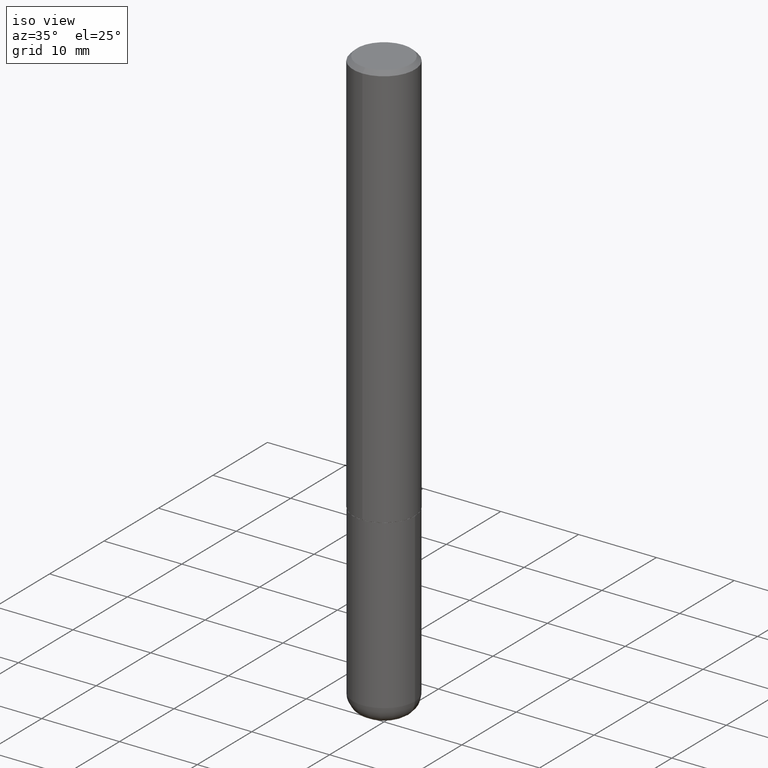
[diagram: clean part render]
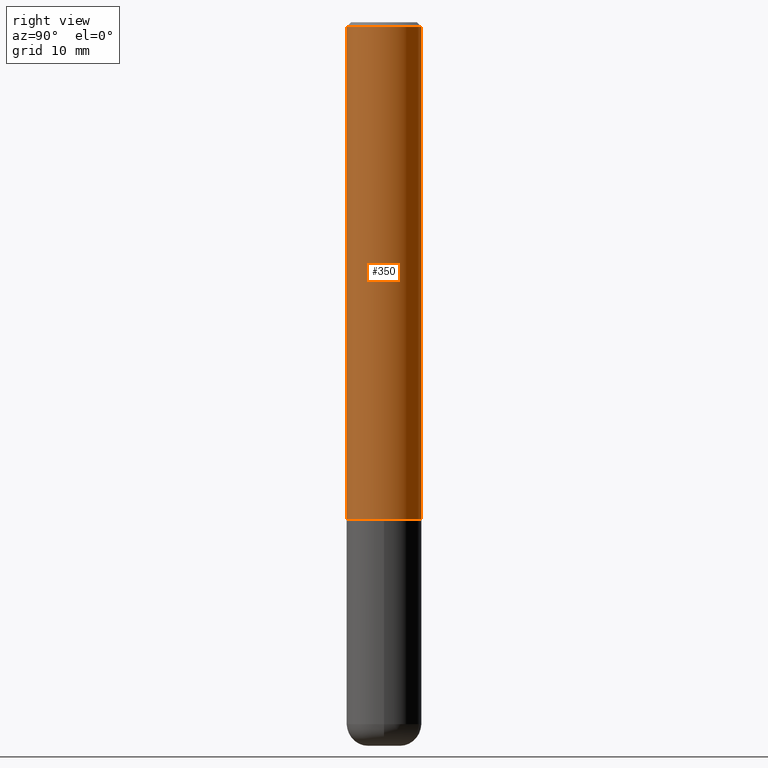
[diagram: tour spotlight — one face highlighted and labeled with its STEP entity id]
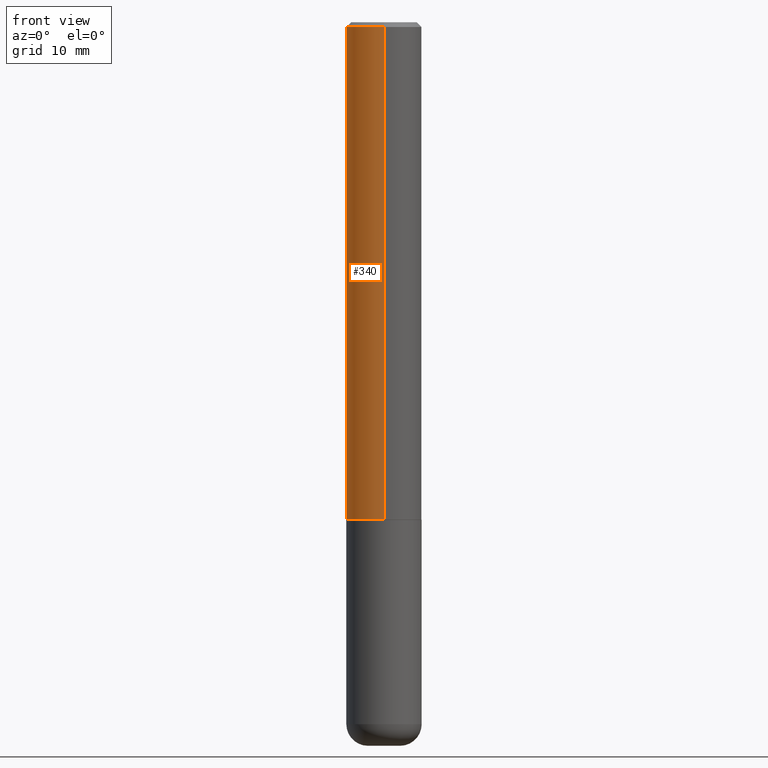
[diagram: tour spotlight — one face highlighted and labeled with its STEP entity id]
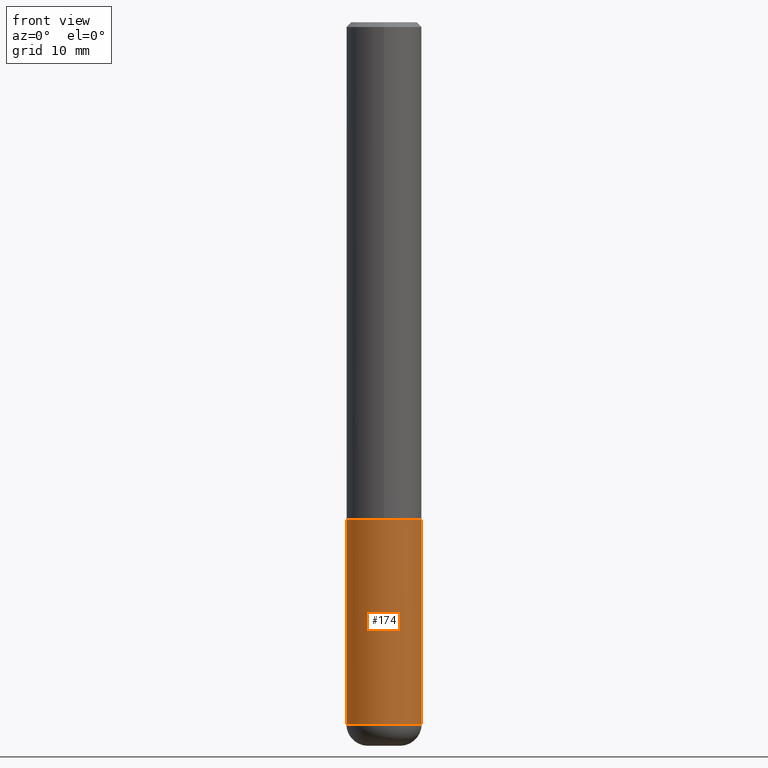
[diagram: tour spotlight — one face highlighted and labeled with its STEP entity id]
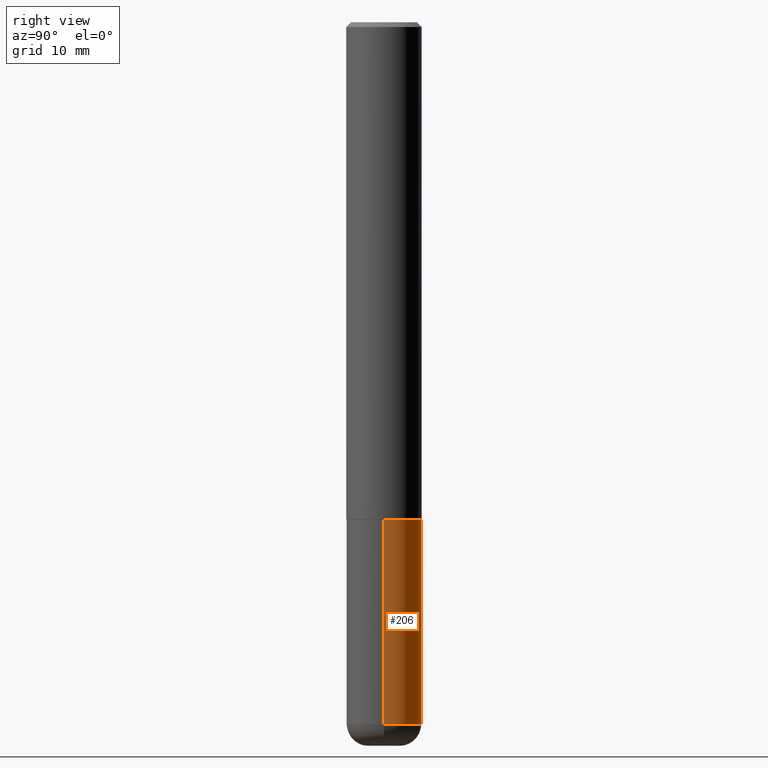
[diagram: tour spotlight — one face highlighted and labeled with its STEP entity id]
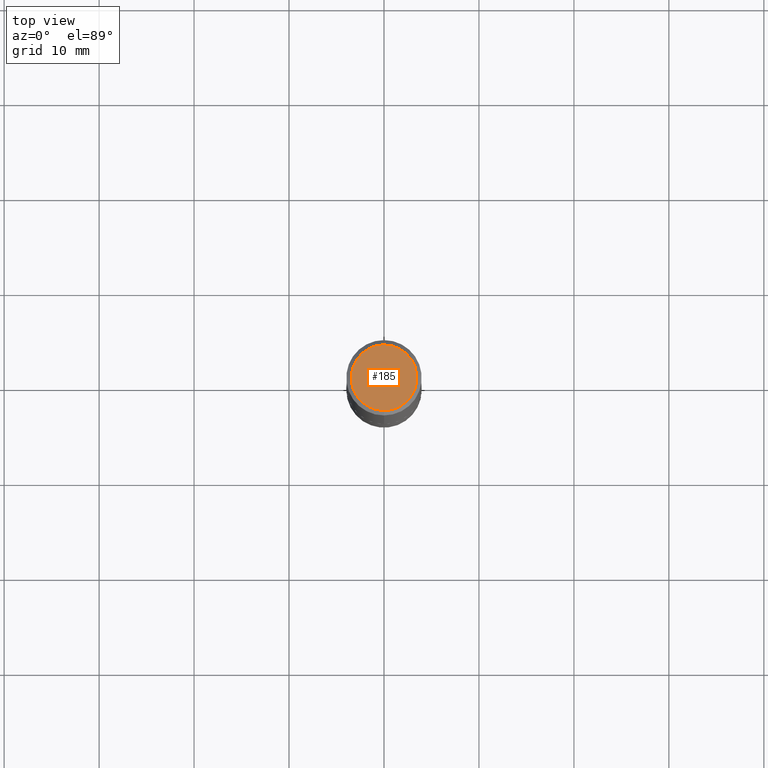
[diagram: tour spotlight — one face highlighted and labeled with its STEP entity id]
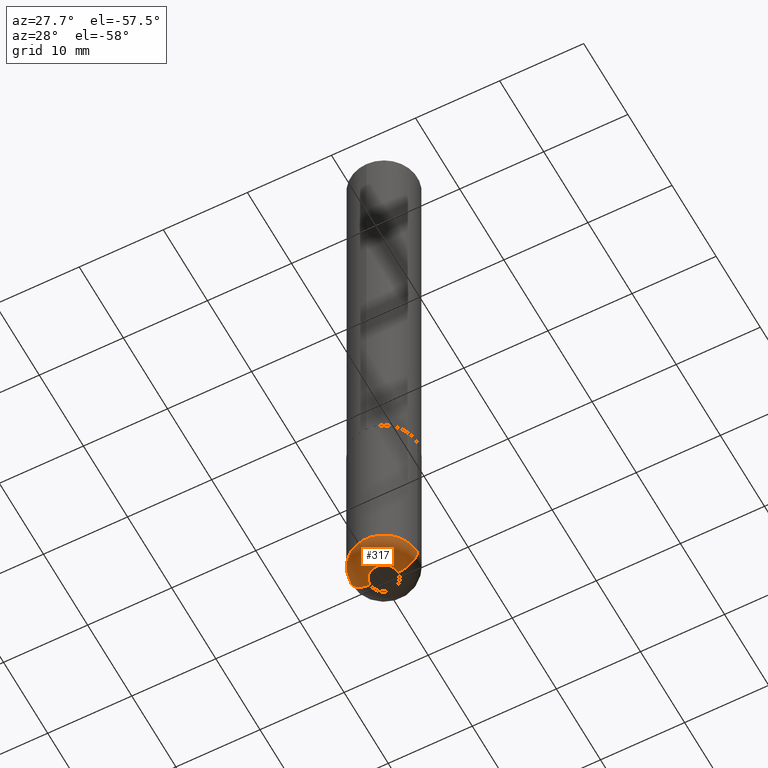
[diagram: tour spotlight — one face highlighted and labeled with its STEP entity id]
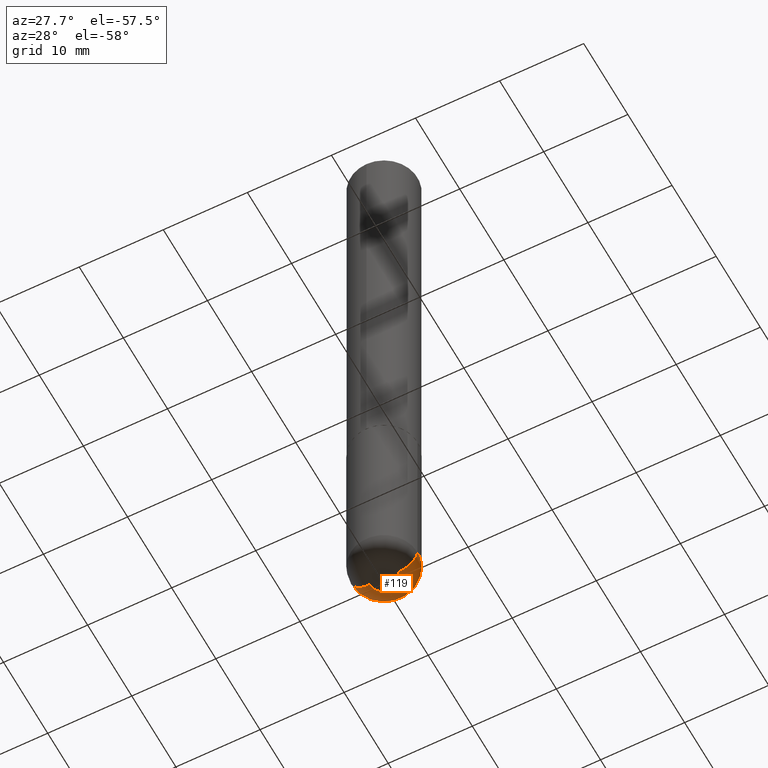
[diagram: tour spotlight — one face highlighted and labeled with its STEP entity id]
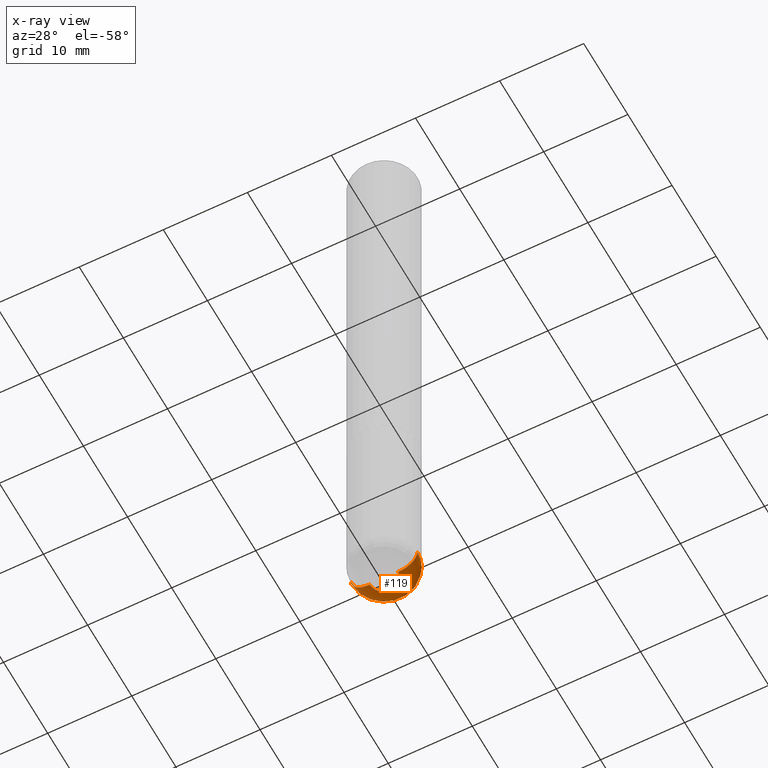
[diagram: x-ray of the same camera — body ghosted, this tour face saturated]
A machine part: a face-by-face anatomy tour. The part has 14 B-rep faces; the first image is the clean iso view, then the 7 largest visible faces are spotlighted one at a time (largest first), each with its STEP entity span.

Face 1 — right view, entity #350. In plain terms, the highlighted cylindrical surface (partial cylindrical patch) has radius 3.9688 mm, axis along (-0, 0, 1).
Definition (entity closure, byte-faithful):
#9 = DIRECTION ( 'NONE',  ( -2.445176063107630933E-29, 3.491900563592034843E-15, 1.000000000000000000 ) ) ;
#22 = CYLINDRICAL_SURFACE ( 'NONE', #265, 0.1562500000000001388 ) ;
#23 = ORIENTED_EDGE ( 'NONE', *, *, #107, .T. ) ;
#30 = VERTEX_POINT ( 'NONE', #103 ) ;
#39 = CARTESIAN_POINT ( 'NONE',  ( -1.091087918388430659E-15, -0.1562500000000074940, -2.061499999999999666 ) ) ;
#57 = DIRECTION ( 'NONE',  ( -6.982962677686265922E-15, -1.000000000000000000, 3.491900563592035238E-15 ) ) ;
#71 = DIRECTION ( 'NONE',  ( -6.982962677686265922E-15, -1.000000000000000000, 3.496765431890250609E-15 ) ) ;
#85 = VECTOR ( 'NONE', #412, 39.37007874015748143 ) ;
#103 = CARTESIAN_POINT ( 'NONE',  ( 1.091087918388479568E-15, 0.1562499999999999445, -0.02000000000000057981 ) ) ;
#107 = EDGE_CURVE ( 'NONE', #121, #214, #131, .T. ) ;
#109 = VECTOR ( 'NONE', #261, 39.37007874015748143 ) ;
#114 = CARTESIAN_POINT ( 'NONE',  ( -1.091087918388479962E-15, -0.1562500000000001388, 5.456094630612559989E-16 ) ) ;
#121 = VERTEX_POINT ( 'NONE', #39 ) ;
#131 = CIRCLE ( 'NONE', #345, 0.1562500000000002776 ) ;
#147 = ORIENTED_EDGE ( 'NONE', *, *, #303, .F. ) ;
#167 = CARTESIAN_POINT ( 'NONE',  ( 5.040730454096381281E-29, -7.198553011844980434E-15, -2.061500000000000110 ) ) ;
#187 = CARTESIAN_POINT ( 'NONE',  ( 4.890352126215269679E-31, -6.983801127184080238E-17, -0.02000000000000003511 ) ) ;
#210 = EDGE_CURVE ( 'NONE', #121, #219, #343, .T. ) ;
#214 = VERTEX_POINT ( 'NONE', #369 ) ;
#219 = VERTEX_POINT ( 'NONE', #309 ) ;
#222 = CIRCLE ( 'NONE', #258, 0.1562500000000000000 ) ;
#229 = CARTESIAN_POINT ( 'NONE',  ( 1.110223024625157329E-15, 0.1562500000000001388, -5.456094630612559989E-16 ) ) ;
#244 = DIRECTION ( 'NONE',  ( -6.982962677686265133E-15, -1.000000000000000000, 3.496765431890256920E-15 ) ) ;
#247 = DIRECTION ( 'NONE',  ( -2.445176063107630933E-29, 3.491900563592034843E-15, 1.000000000000000000 ) ) ;
#258 = AXIS2_PLACEMENT_3D ( 'NONE', #187, #410, #244 ) ;
#261 = DIRECTION ( 'NONE',  ( -2.445176063107631214E-29, 3.491900563592034843E-15, 1.000000000000000000 ) ) ;
#265 = AXIS2_PLACEMENT_3D ( 'NONE', #281, #247, #57 ) ;
#281 = CARTESIAN_POINT ( 'NONE',  ( 0.000000000000000000, 0.000000000000000000, 0.000000000000000000 ) ) ;
#303 = EDGE_CURVE ( 'NONE', #219, #30, #222, .T. ) ;
#309 = CARTESIAN_POINT ( 'NONE',  ( -1.071952812151801215E-15, -0.1562500000000000833, -0.01999999999999948694 ) ) ;
#316 = LINE ( 'NONE', #229, #109 ) ;
#324 = ORIENTED_EDGE ( 'NONE', *, *, #210, .F. ) ;
#343 = LINE ( 'NONE', #114, #85 ) ;
#345 = AXIS2_PLACEMENT_3D ( 'NONE', #167, #9, #71 ) ;
#349 = FACE_OUTER_BOUND ( 'NONE', #417, .T. ) ;
#350 = ADVANCED_FACE ( 'NONE', ( #349 ), #22, .T. ) ;
#366 = EDGE_CURVE ( 'NONE', #214, #30, #316, .T. ) ;
#369 = CARTESIAN_POINT ( 'NONE',  ( 1.110223024625183362E-15, 0.1562499999999930611, -2.061500000000000554 ) ) ;
#389 = ORIENTED_EDGE ( 'NONE', *, *, #366, .T. ) ;
#410 = DIRECTION ( 'NONE',  ( -2.445176063107630933E-29, 3.491900563592034843E-15, 1.000000000000000000 ) ) ;
#412 = DIRECTION ( 'NONE',  ( -2.445176063107631214E-29, 3.491900563592034843E-15, 1.000000000000000000 ) ) ;
#417 = EDGE_LOOP ( 'NONE', ( #23, #389, #147, #324 ) ) ;

Face 2 — front view, entity #340. In plain terms, the highlighted cylindrical surface (partial cylindrical patch) has radius 3.9688 mm, axis along (-0, 0, 1).
Definition (entity closure, byte-faithful):
#16 = EDGE_CURVE ( 'NONE', #214, #121, #139, .T. ) ;
#30 = VERTEX_POINT ( 'NONE', #103 ) ;
#34 = EDGE_CURVE ( 'NONE', #30, #219, #293, .T. ) ;
#39 = CARTESIAN_POINT ( 'NONE',  ( -1.091087918388430659E-15, -0.1562500000000074940, -2.061499999999999666 ) ) ;
#70 = CARTESIAN_POINT ( 'NONE',  ( 4.890352126215269679E-31, -6.983801127184080238E-17, -0.02000000000000003511 ) ) ;
#79 = CARTESIAN_POINT ( 'NONE',  ( 0.000000000000000000, 0.000000000000000000, 0.000000000000000000 ) ) ;
#81 = EDGE_LOOP ( 'NONE', ( #287, #354, #92, #186 ) ) ;
#85 = VECTOR ( 'NONE', #412, 39.37007874015748143 ) ;
#92 = ORIENTED_EDGE ( 'NONE', *, *, #210, .T. ) ;
#103 = CARTESIAN_POINT ( 'NONE',  ( 1.091087918388479568E-15, 0.1562499999999999445, -0.02000000000000057981 ) ) ;
#108 = CYLINDRICAL_SURFACE ( 'NONE', #305, 0.1562500000000001388 ) ;
#109 = VECTOR ( 'NONE', #261, 39.37007874015748143 ) ;
#114 = CARTESIAN_POINT ( 'NONE',  ( -1.091087918388479962E-15, -0.1562500000000001388, 5.456094630612559989E-16 ) ) ;
#121 = VERTEX_POINT ( 'NONE', #39 ) ;
#139 = CIRCLE ( 'NONE', #276, 0.1562500000000002776 ) ;
#164 = DIRECTION ( 'NONE',  ( -6.982962677686265922E-15, -1.000000000000000000, 3.496765431890250609E-15 ) ) ;
#186 = ORIENTED_EDGE ( 'NONE', *, *, #34, .F. ) ;
#210 = EDGE_CURVE ( 'NONE', #121, #219, #343, .T. ) ;
#211 = DIRECTION ( 'NONE',  ( -2.445176063107630933E-29, 3.491900563592034843E-15, 1.000000000000000000 ) ) ;
#214 = VERTEX_POINT ( 'NONE', #369 ) ;
#219 = VERTEX_POINT ( 'NONE', #309 ) ;
#229 = CARTESIAN_POINT ( 'NONE',  ( 1.110223024625157329E-15, 0.1562500000000001388, -5.456094630612559989E-16 ) ) ;
#233 = DIRECTION ( 'NONE',  ( -2.445176063107630933E-29, 3.491900563592034843E-15, 1.000000000000000000 ) ) ;
#234 = DIRECTION ( 'NONE',  ( -6.982962677686265133E-15, -1.000000000000000000, 3.496765431890256920E-15 ) ) ;
#259 = CARTESIAN_POINT ( 'NONE',  ( 5.040730454096381281E-29, -7.198553011844980434E-15, -2.061500000000000110 ) ) ;
#261 = DIRECTION ( 'NONE',  ( -2.445176063107631214E-29, 3.491900563592034843E-15, 1.000000000000000000 ) ) ;
#276 = AXIS2_PLACEMENT_3D ( 'NONE', #259, #233, #164 ) ;
#287 = ORIENTED_EDGE ( 'NONE', *, *, #366, .F. ) ;
#293 = CIRCLE ( 'NONE', #378, 0.1562500000000000000 ) ;
#297 = DIRECTION ( 'NONE',  ( -2.445176063107630933E-29, 3.491900563592034843E-15, 1.000000000000000000 ) ) ;
#305 = AXIS2_PLACEMENT_3D ( 'NONE', #79, #211, #313 ) ;
#309 = CARTESIAN_POINT ( 'NONE',  ( -1.071952812151801215E-15, -0.1562500000000000833, -0.01999999999999948694 ) ) ;
#313 = DIRECTION ( 'NONE',  ( -6.982962677686265922E-15, -1.000000000000000000, 3.491900563592035238E-15 ) ) ;
#316 = LINE ( 'NONE', #229, #109 ) ;
#340 = ADVANCED_FACE ( 'NONE', ( #342 ), #108, .T. ) ;
#342 = FACE_OUTER_BOUND ( 'NONE', #81, .T. ) ;
#343 = LINE ( 'NONE', #114, #85 ) ;
#354 = ORIENTED_EDGE ( 'NONE', *, *, #16, .T. ) ;
#366 = EDGE_CURVE ( 'NONE', #214, #30, #316, .T. ) ;
#369 = CARTESIAN_POINT ( 'NONE',  ( 1.110223024625183362E-15, 0.1562499999999930611, -2.061500000000000554 ) ) ;
#378 = AXIS2_PLACEMENT_3D ( 'NONE', #70, #297, #234 ) ;
#412 = DIRECTION ( 'NONE',  ( -2.445176063107631214E-29, 3.491900563592034843E-15, 1.000000000000000000 ) ) ;

Face 3 — front view, entity #174. In plain terms, the highlighted cylindrical surface (partial cylindrical patch) has radius 3.9688 mm, axis along (-0, 0, 1).
Definition (entity closure, byte-faithful):
#4 = DIRECTION ( 'NONE',  ( -2.445468806185136877E-29, 3.491481338843145188E-15, 1.000000000000000000 ) ) ;
#14 = AXIS2_PLACEMENT_3D ( 'NONE', #269, #326, #32 ) ;
#32 = DIRECTION ( 'NONE',  ( 1.000000000000000000, -6.982962677686269077E-15, 0.000000000000000000 ) ) ;
#46 = AXIS2_PLACEMENT_3D ( 'NONE', #127, #262, #394 ) ;
#48 = LINE ( 'NONE', #415, #231 ) ;
#53 = VECTOR ( 'NONE', #4, 39.37007874015748143 ) ;
#63 = ORIENTED_EDGE ( 'NONE', *, *, #392, .T. ) ;
#66 = CARTESIAN_POINT ( 'NONE',  ( 7.116314225998749245E-29, -1.016021069603355467E-14, -2.910000000000000586 ) ) ;
#68 = CARTESIAN_POINT ( 'NONE',  ( 0.1562500000000000000, -8.292268179752468540E-15, -2.062500000000000000 ) ) ;
#75 = CARTESIAN_POINT ( 'NONE',  ( -0.1562499999999998335, -9.049987671408398127E-15, -2.910000000000000586 ) ) ;
#96 = LINE ( 'NONE', #387, #53 ) ;
#97 = FACE_OUTER_BOUND ( 'NONE', #118, .T. ) ;
#105 = EDGE_CURVE ( 'NONE', #376, #416, #197, .T. ) ;
#118 = EDGE_LOOP ( 'NONE', ( #225, #63, #329, #217 ) ) ;
#127 = CARTESIAN_POINT ( 'NONE',  ( 0.000000000000000000, 0.000000000000000000, 0.000000000000000000 ) ) ;
#159 = CARTESIAN_POINT ( 'NONE',  ( -0.1562500000000000000, -7.570472454073614293E-15, -2.062500000000000000 ) ) ;
#174 = ADVANCED_FACE ( 'NONE', ( #97 ), #296, .T. ) ;
#182 = VERTEX_POINT ( 'NONE', #379 ) ;
#197 = CIRCLE ( 'NONE', #14, 0.1562500000000000000 ) ;
#208 = CIRCLE ( 'NONE', #388, 0.1562500000000000000 ) ;
#217 = ORIENTED_EDGE ( 'NONE', *, *, #105, .F. ) ;
#218 = DIRECTION ( 'NONE',  ( 1.000000000000000000, -6.982962677686262766E-15, 0.000000000000000000 ) ) ;
#225 = ORIENTED_EDGE ( 'NONE', *, *, #401, .F. ) ;
#230 = VERTEX_POINT ( 'NONE', #75 ) ;
#231 = VECTOR ( 'NONE', #337, 39.37007874015748143 ) ;
#242 = EDGE_CURVE ( 'NONE', #182, #416, #48, .T. ) ;
#262 = DIRECTION ( 'NONE',  ( -2.445468806185136597E-29, 3.491481338843145583E-15, 1.000000000000000000 ) ) ;
#269 = CARTESIAN_POINT ( 'NONE',  ( 5.043779412756844791E-29, -7.201180261363988578E-15, -2.062500000000000000 ) ) ;
#291 = DIRECTION ( 'NONE',  ( -2.445468806185136597E-29, 3.491481338843145583E-15, 1.000000000000000000 ) ) ;
#296 = CYLINDRICAL_SURFACE ( 'NONE', #46, 0.1562500000000000000 ) ;
#326 = DIRECTION ( 'NONE',  ( -2.445468806185136597E-29, 3.491481338843145583E-15, 1.000000000000000000 ) ) ;
#329 = ORIENTED_EDGE ( 'NONE', *, *, #242, .T. ) ;
#337 = DIRECTION ( 'NONE',  ( -2.445468806185136877E-29, 3.491481338843145188E-15, 1.000000000000000000 ) ) ;
#376 = VERTEX_POINT ( 'NONE', #159 ) ;
#379 = CARTESIAN_POINT ( 'NONE',  ( 0.1562499999999998335, -1.125129861442203147E-14, -2.910000000000000586 ) ) ;
#387 = CARTESIAN_POINT ( 'NONE',  ( -0.1562500000000000000, 1.110223024625156540E-15, -7.685836078523291160E-30 ) ) ;
#388 = AXIS2_PLACEMENT_3D ( 'NONE', #66, #291, #218 ) ;
#392 = EDGE_CURVE ( 'NONE', #230, #182, #208, .T. ) ;
#394 = DIRECTION ( 'NONE',  ( 1.000000000000000000, -6.982962677686266711E-15, 4.876176775795936353E-29 ) ) ;
#401 = EDGE_CURVE ( 'NONE', #230, #376, #96, .T. ) ;
#415 = CARTESIAN_POINT ( 'NONE',  ( 0.1562500000000000000, -1.091087918388479174E-15, 7.619026212181150377E-30 ) ) ;
#416 = VERTEX_POINT ( 'NONE', #68 ) ;

Face 4 — right view, entity #206. In plain terms, the highlighted cylindrical surface (partial cylindrical patch) has radius 3.9688 mm, axis along (-0, 0, 1).
Definition (entity closure, byte-faithful):
#4 = DIRECTION ( 'NONE',  ( -2.445468806185136877E-29, 3.491481338843145188E-15, 1.000000000000000000 ) ) ;
#24 = CARTESIAN_POINT ( 'NONE',  ( 5.043779412756844791E-29, -7.201180261363988578E-15, -2.062500000000000000 ) ) ;
#48 = LINE ( 'NONE', #415, #231 ) ;
#53 = VECTOR ( 'NONE', #4, 39.37007874015748143 ) ;
#61 = ORIENTED_EDGE ( 'NONE', *, *, #401, .T. ) ;
#68 = CARTESIAN_POINT ( 'NONE',  ( 0.1562500000000000000, -8.292268179752468540E-15, -2.062500000000000000 ) ) ;
#69 = CIRCLE ( 'NONE', #310, 0.1562500000000000000 ) ;
#75 = CARTESIAN_POINT ( 'NONE',  ( -0.1562499999999998335, -9.049987671408398127E-15, -2.910000000000000586 ) ) ;
#82 = DIRECTION ( 'NONE',  ( -2.445468806185136597E-29, 3.491481338843145583E-15, 1.000000000000000000 ) ) ;
#95 = ORIENTED_EDGE ( 'NONE', *, *, #256, .F. ) ;
#96 = LINE ( 'NONE', #387, #53 ) ;
#142 = DIRECTION ( 'NONE',  ( -2.445468806185136597E-29, 3.491481338843145583E-15, 1.000000000000000000 ) ) ;
#145 = DIRECTION ( 'NONE',  ( -2.445468806185136597E-29, 3.491481338843145583E-15, 1.000000000000000000 ) ) ;
#159 = CARTESIAN_POINT ( 'NONE',  ( -0.1562500000000000000, -7.570472454073614293E-15, -2.062500000000000000 ) ) ;
#160 = CIRCLE ( 'NONE', #321, 0.1562500000000000000 ) ;
#182 = VERTEX_POINT ( 'NONE', #379 ) ;
#190 = ORIENTED_EDGE ( 'NONE', *, *, #328, .T. ) ;
#198 = AXIS2_PLACEMENT_3D ( 'NONE', #209, #82, #241 ) ;
#206 = ADVANCED_FACE ( 'NONE', ( #375 ), #274, .T. ) ;
#209 = CARTESIAN_POINT ( 'NONE',  ( 0.000000000000000000, 0.000000000000000000, 0.000000000000000000 ) ) ;
#230 = VERTEX_POINT ( 'NONE', #75 ) ;
#231 = VECTOR ( 'NONE', #337, 39.37007874015748143 ) ;
#241 = DIRECTION ( 'NONE',  ( 1.000000000000000000, -6.982962677686266711E-15, 4.876176775795936353E-29 ) ) ;
#242 = EDGE_CURVE ( 'NONE', #182, #416, #48, .T. ) ;
#256 = EDGE_CURVE ( 'NONE', #416, #376, #160, .T. ) ;
#274 = CYLINDRICAL_SURFACE ( 'NONE', #198, 0.1562500000000000000 ) ;
#279 = DIRECTION ( 'NONE',  ( 1.000000000000000000, -6.982962677686269077E-15, 0.000000000000000000 ) ) ;
#300 = ORIENTED_EDGE ( 'NONE', *, *, #242, .F. ) ;
#310 = AXIS2_PLACEMENT_3D ( 'NONE', #373, #142, #406 ) ;
#321 = AXIS2_PLACEMENT_3D ( 'NONE', #24, #145, #279 ) ;
#328 = EDGE_CURVE ( 'NONE', #182, #230, #69, .T. ) ;
#337 = DIRECTION ( 'NONE',  ( -2.445468806185136877E-29, 3.491481338843145188E-15, 1.000000000000000000 ) ) ;
#373 = CARTESIAN_POINT ( 'NONE',  ( 7.116314225998749245E-29, -1.016021069603355467E-14, -2.910000000000000586 ) ) ;
#375 = FACE_OUTER_BOUND ( 'NONE', #413, .T. ) ;
#376 = VERTEX_POINT ( 'NONE', #159 ) ;
#379 = CARTESIAN_POINT ( 'NONE',  ( 0.1562499999999998335, -1.125129861442203147E-14, -2.910000000000000586 ) ) ;
#387 = CARTESIAN_POINT ( 'NONE',  ( -0.1562500000000000000, 1.110223024625156540E-15, -7.685836078523291160E-30 ) ) ;
#401 = EDGE_CURVE ( 'NONE', #230, #376, #96, .T. ) ;
#406 = DIRECTION ( 'NONE',  ( 1.000000000000000000, -6.982962677686262766E-15, 0.000000000000000000 ) ) ;
#413 = EDGE_LOOP ( 'NONE', ( #190, #61, #95, #300 ) ) ;
#415 = CARTESIAN_POINT ( 'NONE',  ( 0.1562500000000000000, -1.091087918388479174E-15, 7.619026212181150377E-30 ) ) ;
#416 = VERTEX_POINT ( 'NONE', #68 ) ;

Face 5 — top view, entity #185. In plain terms, the highlighted planar face has unit normal (0, -0, -1).
Definition (entity closure, byte-faithful):
#18 = DIRECTION ( 'NONE',  ( -6.982962677686265922E-15, -1.000000000000000000, 3.491900563592034843E-15 ) ) ;
#45 = AXIS2_PLACEMENT_3D ( 'NONE', #194, #201, #333 ) ;
#49 = FACE_OUTER_BOUND ( 'NONE', #89, .T. ) ;
#60 = VERTEX_POINT ( 'NONE', #196 ) ;
#86 = CARTESIAN_POINT ( 'NONE',  ( 2.190428889620163364E-45, -3.128101894001013777E-31, -8.958164292007245599E-17 ) ) ;
#89 = EDGE_LOOP ( 'NONE', ( #381, #418 ) ) ;
#116 = EDGE_CURVE ( 'NONE', #411, #60, #158, .T. ) ;
#124 = AXIS2_PLACEMENT_3D ( 'NONE', #86, #284, #18 ) ;
#150 = CARTESIAN_POINT ( 'NONE',  ( 9.514286648347545493E-16, 0.1362500000000001210, -5.205622732494513937E-16 ) ) ;
#158 = CIRCLE ( 'NONE', #45, 0.1362500000000001210 ) ;
#163 = CARTESIAN_POINT ( 'NONE',  ( -1.003347832174086672E-15, -0.1362500000000001210, 3.861898088693426789E-16 ) ) ;
#175 = AXIS2_PLACEMENT_3D ( 'NONE', #150, #236, #178 ) ;
#178 = DIRECTION ( 'NONE',  ( 6.982962677686265922E-15, 1.000000000000000000, -3.491900563592034843E-15 ) ) ;
#185 = ADVANCED_FACE ( 'NONE', ( #49 ), #205, .F. ) ;
#194 = CARTESIAN_POINT ( 'NONE',  ( 2.190428889620163364E-45, -3.128101894001013777E-31, -8.958164292007245599E-17 ) ) ;
#196 = CARTESIAN_POINT ( 'NONE',  ( 1.021258291611617059E-15, 0.1362500000000001210, -5.653530947094876156E-16 ) ) ;
#201 = DIRECTION ( 'NONE',  ( -2.445176063107630933E-29, 3.491900563592034843E-15, 1.000000000000000000 ) ) ;
#205 = PLANE ( 'NONE',  #175 ) ;
#236 = DIRECTION ( 'NONE',  ( 2.445176063107630653E-29, -3.491900563592034843E-15, -1.000000000000000000 ) ) ;
#260 = EDGE_CURVE ( 'NONE', #60, #411, #277, .T. ) ;
#277 = CIRCLE ( 'NONE', #124, 0.1362500000000001210 ) ;
#284 = DIRECTION ( 'NONE',  ( -2.445176063107630933E-29, 3.491900563592034843E-15, 1.000000000000000000 ) ) ;
#333 = DIRECTION ( 'NONE',  ( -6.982962677686265922E-15, -1.000000000000000000, 3.491900563592034843E-15 ) ) ;
#381 = ORIENTED_EDGE ( 'NONE', *, *, #260, .T. ) ;
#411 = VERTEX_POINT ( 'NONE', #163 ) ;
#418 = ORIENTED_EDGE ( 'NONE', *, *, #116, .T. ) ;

Face 6 — auxiliary view, entity #317. In plain terms, the highlighted toroidal blend (fillet) surface has major radius 1.6828 mm and minor (blend) radius 2.286 mm.
Definition (entity closure, byte-faithful):
#7 = ORIENTED_EDGE ( 'NONE', *, *, #91, .F. ) ;
#11 = CARTESIAN_POINT ( 'NONE',  ( -0.06625000000000001721, -9.526848562748384337E-15, -2.999999999999999556 ) ) ;
#15 = AXIS2_PLACEMENT_3D ( 'NONE', #43, #408, #216 ) ;
#17 = FACE_OUTER_BOUND ( 'NONE', #267, .T. ) ;
#43 = CARTESIAN_POINT ( 'NONE',  ( 7.336406418555408669E-29, -1.047444401652943478E-14, -2.999999999999999556 ) ) ;
#56 = VERTEX_POINT ( 'NONE', #11 ) ;
#66 = CARTESIAN_POINT ( 'NONE',  ( 7.116314225998749245E-29, -1.016021069603355467E-14, -2.910000000000000586 ) ) ;
#75 = CARTESIAN_POINT ( 'NONE',  ( -0.1562499999999998335, -9.049987671408398127E-15, -2.910000000000000586 ) ) ;
#87 = ORIENTED_EDGE ( 'NONE', *, *, #273, .T. ) ;
#91 = EDGE_CURVE ( 'NONE', #56, #230, #320, .T. ) ;
#94 = TOROIDAL_SURFACE ( 'NONE', #102, 0.06625000000000001721, 0.08999999999999964972 ) ;
#102 = AXIS2_PLACEMENT_3D ( 'NONE', #213, #306, #344 ) ;
#106 = AXIS2_PLACEMENT_3D ( 'NONE', #399, #203, #136 ) ;
#136 = DIRECTION ( 'NONE',  ( -1.000000000000000000, 7.105427357600996337E-15, 0.000000000000000000 ) ) ;
#140 = CIRCLE ( 'NONE', #15, 0.06625000000000001721 ) ;
#148 = CARTESIAN_POINT ( 'NONE',  ( 0.06625000000000001721, -1.093706529392614979E-14, -2.999999999999999556 ) ) ;
#149 = ORIENTED_EDGE ( 'NONE', *, *, #288, .T. ) ;
#176 = CARTESIAN_POINT ( 'NONE',  ( 0.06625000000000001721, -1.062283197343026968E-14, -2.910000000000000586 ) ) ;
#182 = VERTEX_POINT ( 'NONE', #379 ) ;
#203 = DIRECTION ( 'NONE',  ( 7.105427357601001859E-15, 1.000000000000000000, -3.491481338843145583E-15 ) ) ;
#208 = CIRCLE ( 'NONE', #388, 0.1562500000000000000 ) ;
#213 = CARTESIAN_POINT ( 'NONE',  ( 7.116314225998749245E-29, -1.016021069603355467E-14, -2.910000000000000586 ) ) ;
#216 = DIRECTION ( 'NONE',  ( 1.000000000000000000, -6.982962677686253300E-15, 0.000000000000000000 ) ) ;
#218 = DIRECTION ( 'NONE',  ( 1.000000000000000000, -6.982962677686262766E-15, 0.000000000000000000 ) ) ;
#230 = VERTEX_POINT ( 'NONE', #75 ) ;
#245 = DIRECTION ( 'NONE',  ( 1.000000000000000000, -6.982962677686273810E-15, 0.000000000000000000 ) ) ;
#248 = AXIS2_PLACEMENT_3D ( 'NONE', #176, #275, #245 ) ;
#249 = VERTEX_POINT ( 'NONE', #148 ) ;
#267 = EDGE_LOOP ( 'NONE', ( #7, #87, #149, #283 ) ) ;
#273 = EDGE_CURVE ( 'NONE', #56, #249, #140, .T. ) ;
#275 = DIRECTION ( 'NONE',  ( -6.982962677686266711E-15, -1.000000000000000000, 3.491481338843145583E-15 ) ) ;
#283 = ORIENTED_EDGE ( 'NONE', *, *, #392, .F. ) ;
#285 = CIRCLE ( 'NONE', #248, 0.08999999999999964972 ) ;
#288 = EDGE_CURVE ( 'NONE', #249, #182, #285, .T. ) ;
#291 = DIRECTION ( 'NONE',  ( -2.445468806185136597E-29, 3.491481338843145583E-15, 1.000000000000000000 ) ) ;
#306 = DIRECTION ( 'NONE',  ( -2.445468806185136597E-29, 3.491481338843145583E-15, 1.000000000000000000 ) ) ;
#317 = ADVANCED_FACE ( 'NONE', ( #17 ), #94, .T. ) ;
#320 = CIRCLE ( 'NONE', #106, 0.08999999999999964972 ) ;
#344 = DIRECTION ( 'NONE',  ( 1.000000000000000000, -6.982962677686265133E-15, 4.883557194083112901E-29 ) ) ;
#379 = CARTESIAN_POINT ( 'NONE',  ( 0.1562499999999998335, -1.125129861442203147E-14, -2.910000000000000586 ) ) ;
#388 = AXIS2_PLACEMENT_3D ( 'NONE', #66, #291, #218 ) ;
#392 = EDGE_CURVE ( 'NONE', #230, #182, #208, .T. ) ;
#399 = CARTESIAN_POINT ( 'NONE',  ( -0.06625000000000001721, -9.689476133592487284E-15, -2.910000000000000586 ) ) ;
#408 = DIRECTION ( 'NONE',  ( -2.445468806185136597E-29, 3.491481338843145583E-15, 1.000000000000000000 ) ) ;

Face 7 — auxiliary view, entity #119. An x-ray twin of the same camera follows (body ghosted, this face saturated) — the face is partly hidden behind the body. In plain terms, the highlighted toroidal blend (fillet) surface has major radius 1.6828 mm and minor (blend) radius 2.286 mm.
Definition (entity closure, byte-faithful):
#3 = DIRECTION ( 'NONE',  ( 1.000000000000000000, -6.982962677686265133E-15, 4.883557194083112901E-29 ) ) ;
#10 = CIRCLE ( 'NONE', #243, 0.06625000000000001721 ) ;
#11 = CARTESIAN_POINT ( 'NONE',  ( -0.06625000000000001721, -9.526848562748384337E-15, -2.999999999999999556 ) ) ;
#25 = ORIENTED_EDGE ( 'NONE', *, *, #405, .T. ) ;
#56 = VERTEX_POINT ( 'NONE', #11 ) ;
#69 = CIRCLE ( 'NONE', #310, 0.1562500000000000000 ) ;
#73 = FACE_OUTER_BOUND ( 'NONE', #246, .T. ) ;
#75 = CARTESIAN_POINT ( 'NONE',  ( -0.1562499999999998335, -9.049987671408398127E-15, -2.910000000000000586 ) ) ;
#83 = ORIENTED_EDGE ( 'NONE', *, *, #328, .F. ) ;
#90 = DIRECTION ( 'NONE',  ( -2.445468806185136597E-29, 3.491481338843145583E-15, 1.000000000000000000 ) ) ;
#91 = EDGE_CURVE ( 'NONE', #56, #230, #320, .T. ) ;
#106 = AXIS2_PLACEMENT_3D ( 'NONE', #399, #203, #136 ) ;
#119 = ADVANCED_FACE ( 'NONE', ( #73 ), #362, .T. ) ;
#129 = ORIENTED_EDGE ( 'NONE', *, *, #288, .F. ) ;
#136 = DIRECTION ( 'NONE',  ( -1.000000000000000000, 7.105427357600996337E-15, 0.000000000000000000 ) ) ;
#142 = DIRECTION ( 'NONE',  ( -2.445468806185136597E-29, 3.491481338843145583E-15, 1.000000000000000000 ) ) ;
#148 = CARTESIAN_POINT ( 'NONE',  ( 0.06625000000000001721, -1.093706529392614979E-14, -2.999999999999999556 ) ) ;
#153 = CARTESIAN_POINT ( 'NONE',  ( 7.336406418555408669E-29, -1.047444401652943478E-14, -2.999999999999999556 ) ) ;
#173 = AXIS2_PLACEMENT_3D ( 'NONE', #228, #292, #3 ) ;
#176 = CARTESIAN_POINT ( 'NONE',  ( 0.06625000000000001721, -1.062283197343026968E-14, -2.910000000000000586 ) ) ;
#182 = VERTEX_POINT ( 'NONE', #379 ) ;
#203 = DIRECTION ( 'NONE',  ( 7.105427357601001859E-15, 1.000000000000000000, -3.491481338843145583E-15 ) ) ;
#224 = DIRECTION ( 'NONE',  ( 1.000000000000000000, -6.982962677686253300E-15, 0.000000000000000000 ) ) ;
#228 = CARTESIAN_POINT ( 'NONE',  ( 7.116314225998749245E-29, -1.016021069603355467E-14, -2.910000000000000586 ) ) ;
#230 = VERTEX_POINT ( 'NONE', #75 ) ;
#243 = AXIS2_PLACEMENT_3D ( 'NONE', #153, #90, #224 ) ;
#245 = DIRECTION ( 'NONE',  ( 1.000000000000000000, -6.982962677686273810E-15, 0.000000000000000000 ) ) ;
#246 = EDGE_LOOP ( 'NONE', ( #25, #286, #83, #129 ) ) ;
#248 = AXIS2_PLACEMENT_3D ( 'NONE', #176, #275, #245 ) ;
#249 = VERTEX_POINT ( 'NONE', #148 ) ;
#275 = DIRECTION ( 'NONE',  ( -6.982962677686266711E-15, -1.000000000000000000, 3.491481338843145583E-15 ) ) ;
#285 = CIRCLE ( 'NONE', #248, 0.08999999999999964972 ) ;
#286 = ORIENTED_EDGE ( 'NONE', *, *, #91, .T. ) ;
#288 = EDGE_CURVE ( 'NONE', #249, #182, #285, .T. ) ;
#292 = DIRECTION ( 'NONE',  ( -2.445468806185136597E-29, 3.491481338843145583E-15, 1.000000000000000000 ) ) ;
#310 = AXIS2_PLACEMENT_3D ( 'NONE', #373, #142, #406 ) ;
#320 = CIRCLE ( 'NONE', #106, 0.08999999999999964972 ) ;
#328 = EDGE_CURVE ( 'NONE', #182, #230, #69, .T. ) ;
#362 = TOROIDAL_SURFACE ( 'NONE', #173, 0.06625000000000001721, 0.08999999999999964972 ) ;
#373 = CARTESIAN_POINT ( 'NONE',  ( 7.116314225998749245E-29, -1.016021069603355467E-14, -2.910000000000000586 ) ) ;
#379 = CARTESIAN_POINT ( 'NONE',  ( 0.1562499999999998335, -1.125129861442203147E-14, -2.910000000000000586 ) ) ;
#399 = CARTESIAN_POINT ( 'NONE',  ( -0.06625000000000001721, -9.689476133592487284E-15, -2.910000000000000586 ) ) ;
#405 = EDGE_CURVE ( 'NONE', #249, #56, #10, .T. ) ;
#406 = DIRECTION ( 'NONE',  ( 1.000000000000000000, -6.982962677686262766E-15, 0.000000000000000000 ) ) ;